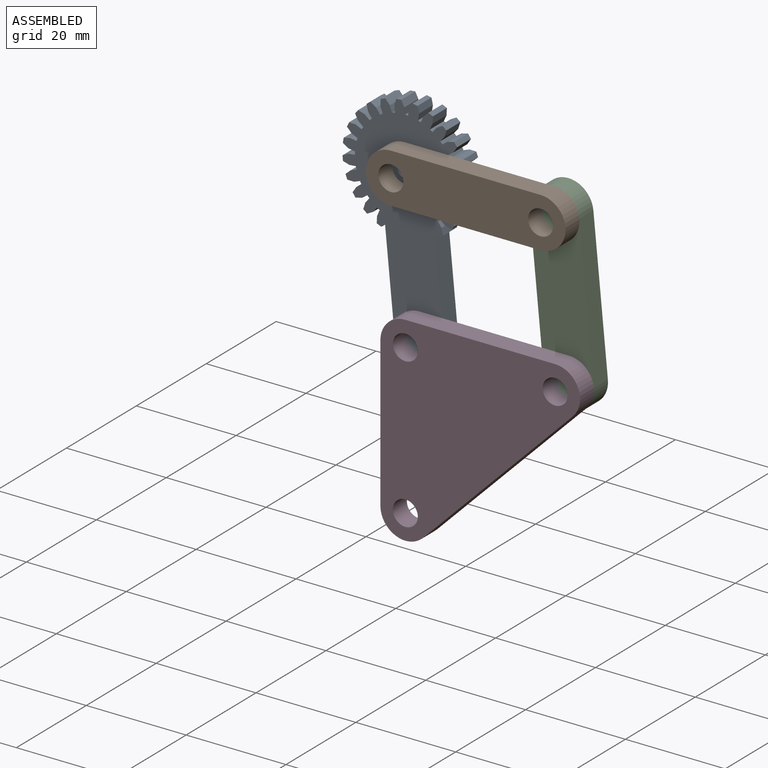
[diagram: assembled view]
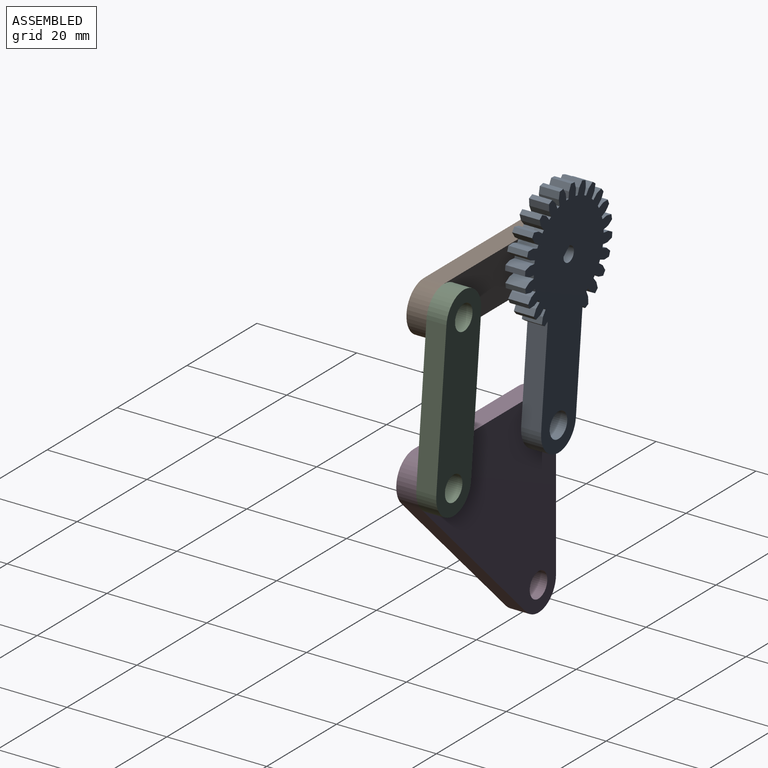
[diagram: assembled view, second angle]
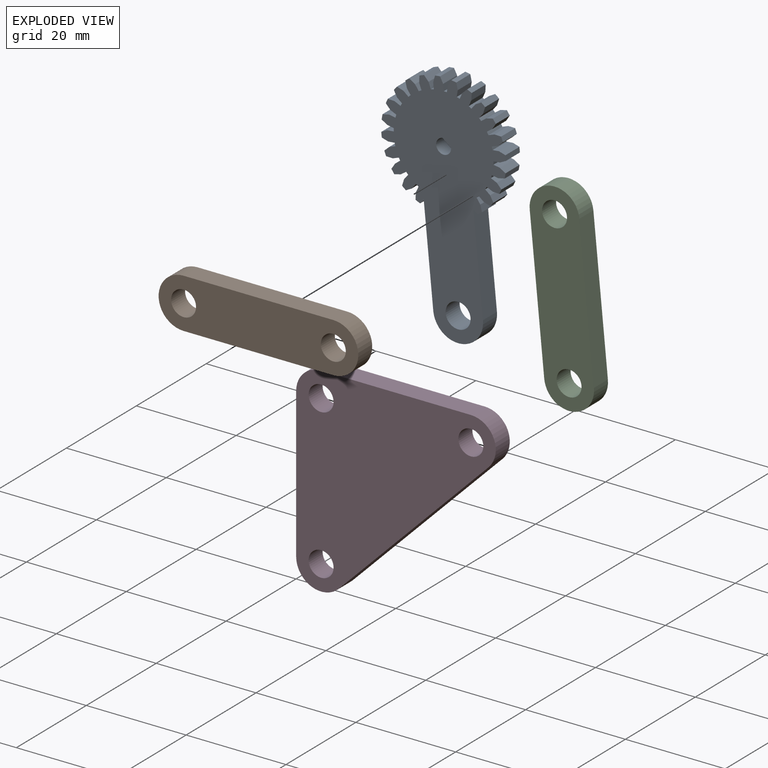
[diagram: exploded view]
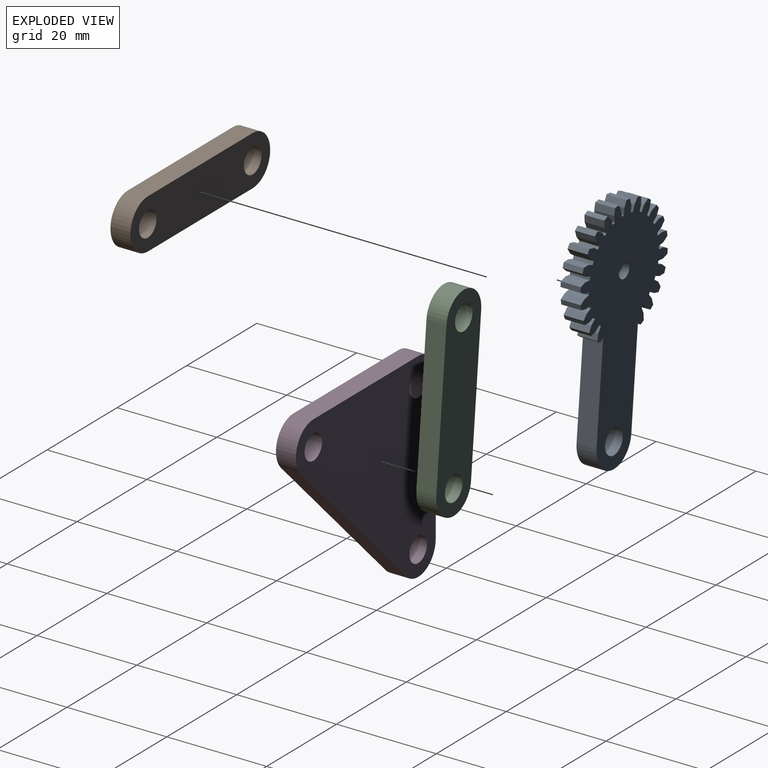
[diagram: exploded view, second angle]
ASSEMBLY  parts=4 mates=4
PART A: 131 faces, bbox 38.7x38.7x4 mm
  f0: plane 4x0.92mm, normal (-0.71,-0.71,0), area 5.2mm2, adj f1,f122,f123,f124
  f1: cylinder r=10mm len=4mm, axis (0,0,-1), area 2.5mm2, adj f0,f2,f123,f124
  f2: plane 4x1.13mm, normal (0.5,0.87,0), area 5.2mm2, adj f1,f3,f123,f124
  f3: plane 4x1.33mm, normal (0.14,0.99,0), area 5.4mm2, adj f2,f4,f123,f124
  f4: plane 4x0.87mm, normal (-0.87,0.5,0), area 4mm2, adj f3,f5,f123,f124
  f5: plane 4x1.06mm, normal (-0.79,-0.62,0), area 5.4mm2, adj f4,f6,f123,f124
  f6: plane 4x1.13mm, normal (-0.5,-0.87,0), area 5.2mm2, adj f5,f7,f123,f124
  f7: cylinder r=10mm len=4mm, axis (0,0,-1), area 2.5mm2, adj f6,f8,f123,f124
  f8: plane 4x1.26mm, normal (0.26,0.97,0), area 5.2mm2, adj f7,f9,f123,f124
  f9: plane 4x1.34mm, normal (-0.12,0.99,0), area 5.4mm2, adj f8,f10,f123,f124
  f10: plane 4x0.97mm, normal (-0.97,0.26,0), area 4mm2, adj f9,f11,f123,f124
  f11: plane 4x1.08mm, normal (-0.6,-0.8,0), area 5.4mm2, adj f10,f12,f123,f124
  f12: plane 4x1.26mm, normal (-0.26,-0.97,0), area 5.2mm2, adj f11,f13,f123,f124
  f13: cylinder r=10mm len=4mm, axis (0,0,-1), area 2.5mm2, adj f12,f14,f123,f124
  f14: plane 4x1.3mm, normal (0,1,0), area 5.2mm2, adj f13,f15,f123,f124
  f15: plane 4x1.25mm, normal (-0.37,0.93,0), area 5.4mm2, adj f14,f16,f123,f124
  f16: plane 4x1mm, normal (-1,0,0), area 4mm2, adj f15,f17,f123,f124
  f17: plane 4x1.25mm, normal (-0.37,-0.93,0), area 5.4mm2, adj f16,f18,f123,f124
  f18: plane 4x1.3mm, normal (0,-1,0), area 5.2mm2, adj f17,f19,f123,f124
  f19: cylinder r=10mm len=4mm, axis (0,0,-1), area 2.5mm2, adj f18,f20,f123,f124
  f20: plane 4x1.26mm, normal (-0.26,0.97,0), area 5.2mm2, adj f19,f21,f123,f124
  f21: plane 4x1.08mm, normal (-0.6,0.8,0), area 5.4mm2, adj f20,f22,f123,f124
  f22: plane 4x0.97mm, normal (-0.97,-0.26,0), area 4mm2, adj f21,f23,f123,f124
  f23: plane 4x1.34mm, normal (-0.12,-0.99,0), area 5.4mm2, adj f22,f24,f123,f124
  f24: plane 4x1.26mm, normal (0.26,-0.97,0), area 5.2mm2, adj f23,f25,f123,f124
  f25: cylinder r=10mm len=4mm, axis (0,0,-1), area 2.5mm2, adj f24,f26,f123,f124
  f26: plane 4x1.13mm, normal (-0.5,0.87,0), area 5.2mm2, adj f25,f27,f123,f124
  f27: plane 4x1.06mm, normal (-0.79,0.62,0), area 5.4mm2, adj f26,f28,f123,f124
  f28: plane 4x0.87mm, normal (-0.87,-0.5,0), area 4mm2, adj f27,f29,f123,f124
  f29: plane 4x1.33mm, normal (0.14,-0.99,0), area 5.4mm2, adj f28,f30,f123,f124
  f30: plane 4x1.13mm, normal (0.5,-0.87,0), area 5.2mm2, adj f29,f31,f123,f124
  f31: cylinder r=10mm len=4mm, axis (0,0,-1), area 2.5mm2, adj f30,f32,f123,f124
  f32: plane 4x0.92mm, normal (-0.71,0.71,0), area 5.2mm2, adj f31,f33,f123,f124
  f33: plane 4x1.24mm, normal (-0.92,0.39,0), area 5.4mm2, adj f32,f34,f123,f124
  f34: plane 4x0.71mm, normal (-0.71,-0.71,0), area 4mm2, adj f33,f35,f123,f124
  f35: plane 4x1.24mm, normal (0.39,-0.92,0), area 5.4mm2, adj f34,f36,f123,f124
  f36: plane 4x0.92mm, normal (0.71,-0.71,0), area 5.2mm2, adj f35,f37,f123,f124
  f37: cylinder r=10mm len=4mm, axis (0,0,-1), area 2.5mm2, adj f36,f38,f123,f124
  f38: plane 4x1.13mm, normal (-0.87,0.5,0), area 5.2mm2, adj f37,f39,f123,f124
  f39: plane 4x1.33mm, normal (-0.99,0.14,0), area 5.4mm2, adj f38,f40,f123,f124
  f40: plane 4x0.87mm, normal (-0.5,-0.87,0), area 4mm2, adj f39,f41,f123,f124
  f41: plane 4x1.06mm, normal (0.62,-0.79,0), area 5.4mm2, adj f40,f42,f123,f124
  f42: plane 4x1.13mm, normal (0.87,-0.5,0), area 5.2mm2, adj f41,f43,f123,f124
  f43: cylinder r=10mm len=4mm, axis (0,0,-1), area 2.5mm2, adj f42,f44,f123,f124
  f44: plane 4x1.26mm, normal (-0.97,0.26,0), area 5.2mm2, adj f43,f45,f123,f124
  f45: plane 4x1.34mm, normal (-0.99,-0.12,0), area 5.4mm2, adj f44,f46,f123,f124
  f46: plane 4x0.97mm, normal (-0.26,-0.97,0), area 4mm2, adj f45,f47,f123,f124
  f47: plane 4x1.08mm, normal (0.8,-0.6,0), area 5.4mm2, adj f46,f48,f123,f124
  f48: plane 4x1.26mm, normal (0.97,-0.26,0), area 5.2mm2, adj f47,f49,f123,f124
  f49: cylinder r=10mm len=4mm, axis (0,0,-1), area 2.5mm2, adj f48,f50,f123,f124
  f50: plane 4x1.3mm, normal (-1,0,0), area 5.2mm2, adj f49,f51,f123,f124
  f51: plane 4x1.25mm, normal (-0.93,-0.37,0), area 5.4mm2, adj f50,f52,f123,f124
  f52: plane 4x1mm, normal (0,-1,0), area 4mm2, adj f51,f53,f123,f124
  f53: plane 4x1.25mm, normal (0.93,-0.37,0), area 5.4mm2, adj f52,f54,f123,f124
  f54: plane 4x1.3mm, normal (1,0,0), area 5.2mm2, adj f53,f55,f123,f124
  f55: cylinder r=10mm len=4mm, axis (0,0,-1), area 2.5mm2, adj f54,f56,f123,f124
  f56: plane 4x1.26mm, normal (-0.97,-0.26,0), area 5.2mm2, adj f55,f57,f123,f124
  f57: plane 4x1.08mm, normal (-0.8,-0.6,0), area 5.4mm2, adj f56,f58,f123,f124
  f58: plane 4x0.97mm, normal (0.26,-0.97,0), area 4mm2, adj f57,f59,f123,f124
  f59: plane 4x1.34mm, normal (0.99,-0.12,0), area 5.4mm2, adj f58,f60,f123,f124
  f60: plane 4x1.26mm, normal (0.97,0.26,0), area 5.2mm2, adj f59,f61,f123,f124
  f61: cylinder r=10mm len=4mm, axis (0,0,-1), area 2.5mm2, adj f60,f62,f123,f124
  f62: plane 4x1.13mm, normal (-0.87,-0.5,0), area 5.2mm2, adj f61,f63,f123,f124
  f63: plane 4x1.06mm, normal (-0.62,-0.79,0), area 5.4mm2, adj f62,f64,f123,f124
  f64: plane 4x0.87mm, normal (0.5,-0.87,0), area 4mm2, adj f63,f65,f123,f124
  f65: plane 4x1.33mm, normal (0.99,0.14,0), area 5.4mm2, adj f64,f66,f123,f124
  f66: plane 4x1.13mm, normal (0.87,0.5,0), area 5.2mm2, adj f65,f67,f123,f124
  f67: cylinder r=10mm len=4mm, axis (0,0,-1), area 2.5mm2, adj f66,f68,f123,f124
  f68: plane 4x0.92mm, normal (-0.71,-0.71,0), area 5.2mm2, adj f67,f69,f123,f124
  f69: plane 4x1.24mm, normal (-0.39,-0.92,0), area 5.4mm2, adj f68,f70,f123,f124
  f70: plane 4x0.71mm, normal (0.71,-0.71,0), area 4mm2, adj f69,f71,f123,f124
  f71: plane 4x1.24mm, normal (0.92,0.39,0), area 5.4mm2, adj f70,f72,f123,f124
  f72: plane 4x0.92mm, normal (0.71,0.71,0), area 5.2mm2, adj f71,f73,f123,f124
  f73: cylinder r=10mm len=4mm, axis (0,0,-1), area 2.5mm2, adj f72,f74,f123,f124
  f74: plane 4x1.13mm, normal (-0.5,-0.87,0), area 5.2mm2, adj f73,f75,f123,f124
  f75: plane 4x1.33mm, normal (-0.14,-0.99,0), area 5.4mm2, adj f74,f76,f123,f124
  f76: plane 4x0.87mm, normal (0.87,-0.5,0), area 4mm2, adj f75,f77,f123,f124
  f77: plane 4x1.06mm, normal (0.79,0.62,0), area 5.4mm2, adj f76,f78,f123,f124
  f78: plane 4x1.13mm, normal (0.5,0.87,0), area 5.2mm2, adj f77,f79,f123,f124
  f79: cylinder r=10mm len=4mm, axis (0,0,-1), area 2.5mm2, adj f78,f80,f123,f124
  f80: plane 4x1.26mm, normal (-0.26,-0.97,0), area 5.2mm2, adj f79,f81,f123,f124
  f81: plane 4x1.34mm, normal (0.12,-0.99,0), area 5.4mm2, adj f80,f82,f123,f124
  f82: plane 4x0.97mm, normal (0.97,-0.26,0), area 4mm2, adj f81,f83,f123,f124
  f83: plane 4x1.08mm, normal (0.6,0.8,0), area 5.4mm2, adj f82,f84,f123,f124
  f84: plane 4x1.26mm, normal (0.26,0.97,0), area 5.2mm2, adj f83,f85,f123,f124
  f85: cylinder r=10mm len=4mm, axis (0,0,-1), area 2.5mm2, adj f84,f86,f123,f124
  f86: plane 4x1.3mm, normal (0,-1,0), area 5.2mm2, adj f85,f87,f123,f124
  f87: plane 4x1.25mm, normal (0.37,-0.93,0), area 5.4mm2, adj f86,f88,f123,f124
  f88: plane 4x1mm, normal (1,0,0), area 4mm2, adj f87,f89,f123,f124
  f89: plane 4x1.25mm, normal (0.37,0.93,0), area 5.4mm2, adj f88,f90,f123,f124
  f90: plane 4x1.3mm, normal (0,1,0), area 5.2mm2, adj f89,f91,f123,f124
  f91: cylinder r=10mm len=4mm, axis (0,0,-1), area 2.5mm2, adj f90,f92,f123,f124
  f92: plane 4x1.26mm, normal (0.26,-0.97,0), area 5.2mm2, adj f91,f93,f123,f124
  f93: plane 4x1.08mm, normal (0.6,-0.8,0), area 5.4mm2, adj f92,f94,f123,f124
  f94: plane 4x0.97mm, normal (0.97,0.26,0), area 4mm2, adj f93,f95,f123,f124
  f95: plane 4x1.03mm, normal (0.12,0.99,0), area 4.2mm2, adj f94,f123,f124,f127
  f96: plane 4x1.03mm, normal (0.99,0.12,0), area 4.2mm2, adj f97,f123,f124,f129
  f97: plane 4x0.97mm, normal (0.26,0.97,0), area 4mm2, adj f96,f98,f123,f124
  f98: plane 4x1.08mm, normal (-0.8,0.6,0), area 5.4mm2, adj f97,f99,f123,f124
  f99: plane 4x1.26mm, normal (-0.97,0.26,0), area 5.2mm2, adj f98,f100,f123,f124
  f100: cylinder r=10mm len=4mm, axis (0,0,-1), area 2.5mm2, adj f99,f101,f123,f124
  f101: plane 4x1.3mm, normal (1,0,0), area 5.2mm2, adj f100,f102,f123,f124
  f102: plane 4x1.25mm, normal (0.93,0.37,0), area 5.4mm2, adj f101,f103,f123,f124
  f103: plane 4x1mm, normal (0,1,0), area 4mm2, adj f102,f104,f123,f124
  f104: plane 4x1.25mm, normal (-0.93,0.37,0), area 5.4mm2, adj f103,f105,f123,f124
  f105: plane 4x1.3mm, normal (-1,0,0), area 5.2mm2, adj f104,f106,f123,f124
  f106: cylinder r=10mm len=4mm, axis (0,0,-1), area 2.5mm2, adj f105,f107,f123,f124
  f107: plane 4x1.26mm, normal (0.97,0.26,0), area 5.2mm2, adj f106,f108,f123,f124
  f108: plane 4x1.08mm, normal (0.8,0.6,0), area 5.4mm2, adj f107,f109,f123,f124
  f109: plane 4x0.97mm, normal (-0.26,0.97,0), area 4mm2, adj f108,f110,f123,f124
  f110: plane 4x1.34mm, normal (-0.99,0.12,0), area 5.4mm2, adj f109,f111,f123,f124
  f111: plane 4x1.26mm, normal (-0.97,-0.26,0), area 5.2mm2, adj f110,f112,f123,f124
  f112: cylinder r=10mm len=4mm, axis (0,0,-1), area 2.5mm2, adj f111,f113,f123,f124
  f113: plane 4x1.13mm, normal (0.87,0.5,0), area 5.2mm2, adj f112,f114,f123,f124
  f114: plane 4x1.06mm, normal (0.62,0.79,0), area 5.4mm2, adj f113,f115,f123,f124
  f115: plane 4x0.87mm, normal (-0.5,0.87,0), area 4mm2, adj f114,f116,f123,f124
  f116: plane 4x1.33mm, normal (-0.99,-0.14,0), area 5.4mm2, adj f115,f117,f123,f124
  f117: plane 4x1.13mm, normal (-0.87,-0.5,0), area 5.2mm2, adj f116,f118,f123,f124
  f118: cylinder r=10mm len=4mm, axis (0,0,-1), area 2.5mm2, adj f117,f119,f123,f124
  f119: plane 4x0.92mm, normal (0.71,0.71,0), area 5.2mm2, adj f118,f120,f123,f124
  f120: plane 4x1.24mm, normal (0.39,0.92,0), area 5.4mm2, adj f119,f121,f123,f124
  f121: plane 4x0.71mm, normal (-0.71,0.71,0), area 4mm2, adj f120,f122,f123,f124
  f122: plane 4x1.24mm, normal (-0.92,-0.39,0), area 5.4mm2, adj f0,f121,f123,f124
  f123: plane 38.71x38.71mm, normal (0,0,1), area 622.7mm2, adj f0,f1,f2,f3,f4,f5,f6,f7
  f124: plane 38.71x38.71mm, normal (0,0,-1), area 622.7mm2, adj f0,f1,f2,f3,f4,f5,f6,f7
  f125: plane 4x2.24mm, normal (0,1,0), area 8.9mm2, adj f123,f124,f126
  f126: cylinder r=1.5mm len=4mm, axis (0,0,1), area 27.6mm2, adj f123,f124,f125
  f127: plane 13.84x13.84mm, normal (0.71,-0.71,0), area 78.3mm2, adj f95,f123,f124,f128
  f128: cylinder r=5mm len=8.54mm, axis (0,0,1), area 62.8mm2, adj f123,f124,f127,f129
  f129: plane 13.84x13.84mm, normal (-0.71,0.71,0), area 78.3mm2, adj f96,f123,f124,f128
  f130: cylinder r=2.5mm len=5mm, axis (0,0,1), area 62.8mm2, adj f123,f124
PART B: 8 faces, bbox 40x10x4 mm
  f0: cylinder r=5mm len=10mm, axis (0,0,1), area 62.8mm2, adj f1,f4,f6,f7
  f1: plane 30x4mm, normal (0,1,0), area 120mm2, adj f0,f2,f6,f7
  f2: cylinder r=5mm len=10mm, axis (0,0,1), area 62.8mm2, adj f1,f4,f6,f7
  f3: cylinder r=2.5mm len=5mm, axis (0,0,1), area 62.8mm2, adj f6,f7
  f4: plane 30x4mm, normal (0,-1,0), area 120mm2, adj f0,f2,f6,f7
  f5: cylinder r=2.5mm len=5mm, axis (0,0,1), area 62.8mm2, adj f6,f7
  f6: plane 40x10mm, normal (0,0,-1), area 339.3mm2, adj f0,f1,f2,f3,f4,f5
  f7: plane 40x10mm, normal (0,0,1), area 339.3mm2, adj f0,f1,f2,f3,f4,f5
PART C: 9 faces, bbox 31.2x31.6x4 mm
  f0: cylinder r=5mm len=7.07mm, axis (0,0,1), area 31.4mm2, adj f1,f5,f7,f8
  f1: plane 21.21x21.21mm, normal (0.71,-0.71,0), area 120mm2, adj f0,f2,f7,f8
  f2: cylinder r=5mm len=8.54mm, axis (0,0,1), area 62.8mm2, adj f1,f3,f7,f8
  f3: plane 21.21x21.21mm, normal (-0.71,0.71,0), area 120mm2, adj f2,f5,f7,f8
  f4: cylinder r=2.5mm len=5mm, axis (0,0,1), area 62.8mm2, adj f7,f8
  f5: extruded ~7.07x4mm, area 31.4mm2, adj f0,f3,f7,f8
  f6: cylinder r=2.5mm len=5mm, axis (0,0,1), area 62.8mm2, adj f7,f8
  f7: plane 31.55x31.21mm, normal (0,0,-1), area 339.3mm2, adj f0,f1,f2,f3,f4,f5,f6
  f8: plane 31.55x31.21mm, normal (0,0,1), area 339.3mm2, adj f0,f1,f2,f3,f4,f5,f6
PART D: 11 faces, bbox 40x40x4 mm
  f0: cylinder r=5mm len=5mm, axis (0,0,-1), area 31.4mm2, adj f1,f7,f9,f10
  f1: plane 30x4mm, normal (0,-1,0), area 120mm2, adj f0,f2,f9,f10
  f2: cylinder r=5mm len=8.54mm, axis (0,0,-1), area 47.1mm2, adj f1,f3,f9,f10
  f3: plane 30x30mm, normal (0.71,0.71,0), area 169.7mm2, adj f2,f4,f9,f10
  f4: cylinder r=5mm len=8.54mm, axis (0,0,-1), area 47.1mm2, adj f3,f7,f9,f10
  f5: cylinder r=2.5mm len=5mm, axis (0,0,-1), area 62.8mm2, adj f9,f10
  f6: cylinder r=2.5mm len=5mm, axis (0,0,-1), area 62.8mm2, adj f9,f10
  f7: plane 30x4mm, normal (-1,0,0), area 120mm2, adj f0,f4,f9,f10
  f8: cylinder r=2.5mm len=5mm, axis (0,0,-1), area 62.8mm2, adj f9,f10
  f9: plane 40x40mm, normal (0,0,1), area 981.8mm2, adj f0,f1,f2,f3,f4,f5,f6,f7
  f10: plane 40x40mm, normal (0,0,-1), area 981.8mm2, adj f0,f1,f2,f3,f4,f5,f6,f7
PLACE A rot(axis=(-0.89,0.32,0.32),96.5deg) t=(-15,4,0)mm
PLACE B rot(axis=(-1,0,0),90deg) t=(-15,4,0)mm
PLACE C rot(axis=(-0.89,0.32,0.32),96.5deg) t=(-8.17,4,19.06)mm
PLACE D rot(axis=(-1,0,0),90deg) t=(-33.31,-4,-8.65)mm
MATE revolute D.f2 <-> C.f0  axis (0,1,0) through (17.91,4,-29.86)mm
MATE revolute A.f126 <-> B.f3  axis (0,1,0) through (-15,8,0)mm
MATE revolute A.f128 <-> D.f0  axis (0,-1,0) through (-12.09,4,-29.86)mm
MATE revolute C.f2 <-> B.f5  axis (0,1,0) through (15,8,0)mm
